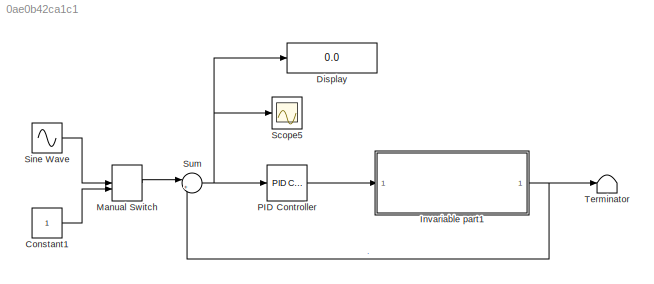
MODEL slx_0ae0b42ca1c1
KIND model
CONFIG AbsTol = auto
CONFIG EnableMultiTasking = off
CONFIG FixedStep = auto
CONFIG MaxStep = 0.1
CONFIG MinStep = auto
CONFIG RelTol = 1e-4
CONFIG SampleTimeConstraint = Unconstrained
CONFIG SolverName = ode23t
CONFIG StartTime = 0.0
CONFIG StopTime = 10
BLOCK [Constant] Constant1
BLOCK [Display] Display
  Decimation = 1
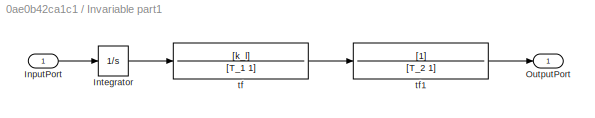
BLOCK [SubSystem] Invariable part1
BLOCK [Inport] Invariable part1/InputPort
BLOCK [Integrator] Invariable part1/Integrator
BLOCK [Outport] Invariable part1/OutputPort
BLOCK [TransferFcn] Invariable part1/tf
  Denominator = [T_1 1]
  Numerator = [k_l]
BLOCK [TransferFcn] Invariable part1/tf1
  Denominator = [T_2 1]
BLOCK [ManualSwitch] Manual Switch
  CurrentSetting = 0
BLOCK [Reference] PID Controller  REF=slpidlib/PID Controller
  LibrarySourceBlock = simulink/Continuous/PID Controller
  SourceBlock = slpidlib/PID Controller
  SourceType = PID 1dof
BLOCK [Scope] Scope5
  Floating = off
  NumInputPorts = 1
  ScopeSpecificationString = Simulink.scopes.TimeScopeBlockCfg('CurrentConfiguration', extmgr.ConfigurationSet(extmgr.Configuration('Core','General UI',true,'FigureColor',[1 1 1]),extmgr.Configuration('Core','Source UI',true),extmgr.Configuration('Sources','WiredSimulink',true,'DataLoggingVariableName','ScopeData5'),extmgr.Configuration('Visuals','Time Domain',true,'SerializedDisplays',{struct('MinYLimReal','-0.32566','MaxYLi...<+1507ch>
BLOCK [Sin] Sine Wave
  Amplitude = 50
  Frequency = 0.5
  SampleTime = 0
BLOCK [Sum] Sum
  Inputs = |+-
BLOCK [Terminator] Terminator
LINE Constant1:1 -> Manual Switch:2
LINE Invariable part1/InputPort:1 -> Invariable part1/Integrator:1
LINE Invariable part1/Integrator:1 -> Invariable part1/tf:1
LINE Invariable part1/tf1:1 -> Invariable part1/OutputPort:1
LINE Invariable part1/tf:1 -> Invariable part1/tf1:1
NET Invariable part1:1 -> Sum:2, Terminator:1
LINE Manual Switch:1 -> Sum:1
LINE PID Controller:1 -> Invariable part1:1
LINE Sine Wave:1 -> Manual Switch:1
NET Sum:1 -> Display:1, PID Controller:1, Scope5:1
note: NET lines group one-source signal fan-out (src -> all destinations, sorted); 1:1 wires keep LINE
